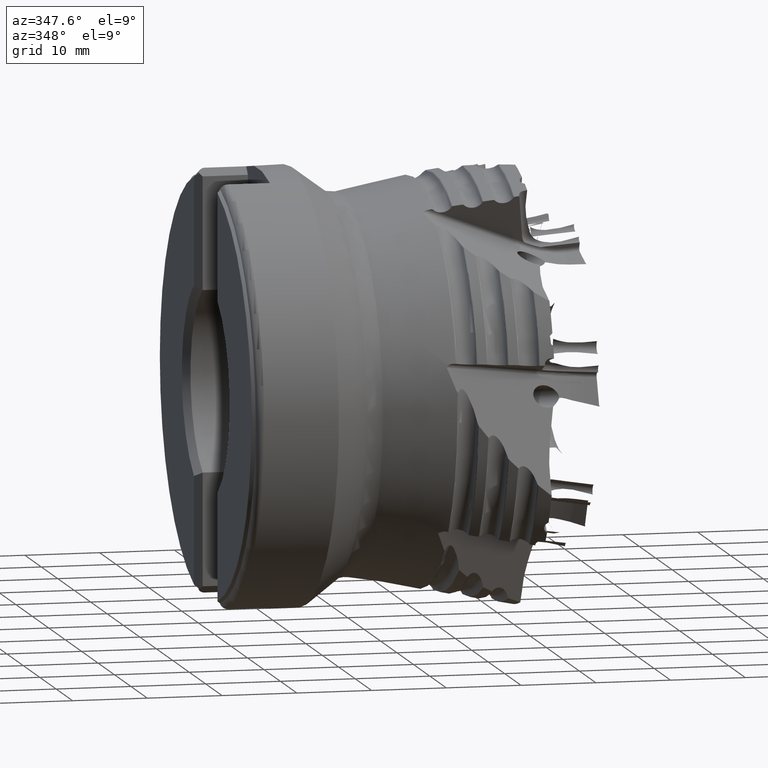
[diagram: clean part render]
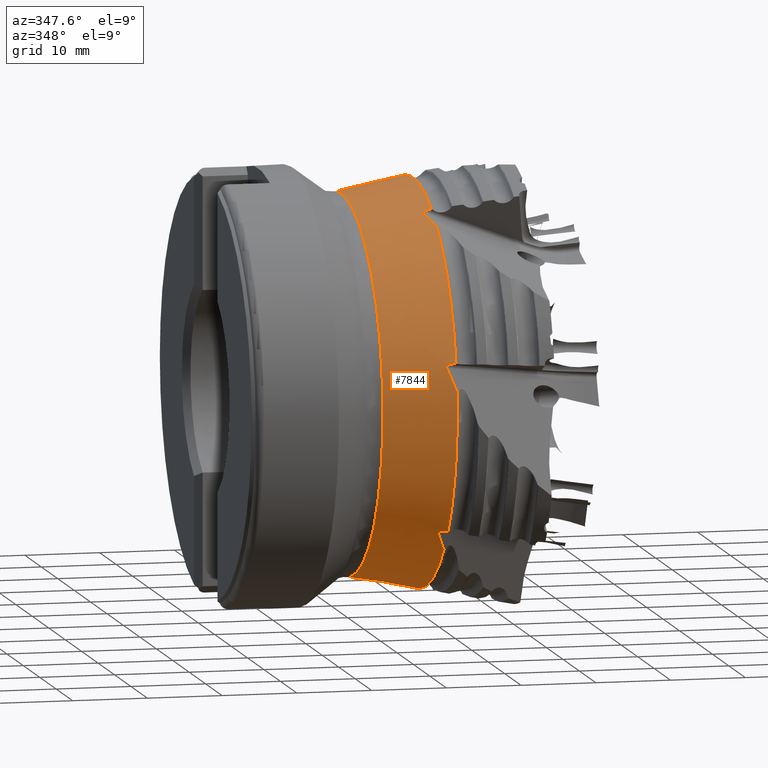
[diagram: same view with one face highlighted and labeled with its STEP entity id]
A machine part, auxiliary view. The second image highlights one B-rep face of the part: STEP entity #7844.
In plain terms, the highlighted conical surface has half-angle 10.839 deg.
Its self-contained STEP definition (entity closure, byte-faithful):
#25 = CARTESIAN_POINT ( 'NONE',  ( -21.29360231539660100, 12.12088007133810800, 24.20960675654019300 ) ) ;
#44 = CARTESIAN_POINT ( 'NONE',  ( -22.50028271122100800, -26.16677941317794200, 5.988833424580206200 ) ) ;
#74 = CARTESIAN_POINT ( 'NONE',  ( -22.50060545841283500, 0.03782372627721895100, -26.84328289638704800 ) ) ;
#102 = CARTESIAN_POINT ( 'NONE',  ( -22.05216509213893500, -26.16349653463762300, 6.375755505402028500 ) ) ;
#105 = VERTEX_POINT ( 'NONE', #1705 ) ;
#119 = CARTESIAN_POINT ( 'NONE',  ( -22.24207881119258400, -0.3227291792667023000, -26.89084651332126800 ) ) ;
#145 = EDGE_CURVE ( 'NONE', #6051, #12024, #3671, .T. ) ;
#200 = VERTEX_POINT ( 'NONE', #8090 ) ;
#269 = CARTESIAN_POINT ( 'NONE',  ( -21.29360231539660100, 20.90547181604998900, -17.20412860793644300 ) ) ;
#418 = AXIS2_PLACEMENT_3D ( 'NONE', #10304, #3954, #11376 ) ;
#437 = CARTESIAN_POINT ( 'NONE',  ( -22.48657542663973200, 26.15303881655725200, 6.059990592862874300 ) ) ;
#472 = CARTESIAN_POINT ( 'NONE',  ( -22.05216509213890300, 26.33883249156456000, 5.607558485113008500 ) ) ;
#526 = VERTEX_POINT ( 'NONE', #7633 ) ;
#565 = CARTESIAN_POINT ( 'NONE',  ( -21.54751282689976200, -11.33337416321396100, 24.53457545411862400 ) ) ;
#608 = CARTESIAN_POINT ( 'NONE',  ( -21.95167456189684400, 12.06565498227892300, 24.09635381027083800 ) ) ;
#623 = VERTEX_POINT ( 'NONE', #6756 ) ;
#802 = CARTESIAN_POINT ( 'NONE',  ( -21.29360231539660100, 0.0000000000000000000, 0.0000000000000000000 ) ) ;
#817 = B_SPLINE_CURVE_WITH_KNOTS ( 'NONE', 3,
 ( #7480, #74, #11755, #5432, #12813, #6484, #119, #7534, #1178, #8619, #2242, #9687 ),
 .UNSPECIFIED., .F., .F.,
 ( 4, 2, 2, 2, 2, 4 ),
 ( 5.678508878392829500E-018, 0.0001553431224996727400, 0.0003106862449993397900, 0.0006213724899986738200, 0.0009320587349980079200, 0.001242744979997342000 ),
 .UNSPECIFIED. ) ;
#887 = VERTEX_POINT ( 'NONE', #9997 ) ;
#967 = CARTESIAN_POINT ( 'NONE',  ( -22.50060545841283500, 21.01050636879316600, -16.70694135431847000 ) ) ;
#968 = CARTESIAN_POINT ( 'NONE',  ( -21.79621176707721000, -19.66494481627597300, -18.49928184980610600 ) ) ;
#1000 = CARTESIAN_POINT ( 'NONE',  ( -21.79621176707715300, 2.202428406164759900, -26.90878653342551600 ) ) ;
#1011 = CARTESIAN_POINT ( 'NONE',  ( -21.29360231539659800, -18.97964640580545000, -19.30786925894918600 ) ) ;
#1068 = VERTEX_POINT ( 'NONE', #7936 ) ;
#1071 = CIRCLE ( 'NONE', #13144, 27.07435674231389200 ) ;
#1086 = CARTESIAN_POINT ( 'NONE',  ( -21.29360231539660100, -26.92911602292759100, 2.800625507593435400 ) ) ;
#1157 = CARTESIAN_POINT ( 'NONE',  ( -21.75033332430290800, -26.20903793073052400, 6.432712216761702400 ) ) ;
#1178 = CARTESIAN_POINT ( 'NONE',  ( -21.95167456189706800, -0.4157634195852180100, -26.94515611162937700 ) ) ;
#1248 = CIRCLE ( 'NONE', #418, 27.07435674231389200 ) ;
#1262 = CARTESIAN_POINT ( 'NONE',  ( -22.47010761722986100, -21.06301945470250600, -16.65010160435356900 ) ) ;
#1294 = ORIENTED_EDGE ( 'NONE', *, *, #6687, .T. ) ;
#1400 = CARTESIAN_POINT ( 'NONE',  ( -21.79621176707720000, -13.65960434397734600, 23.28838106764271700 ) ) ;
#1406 = CARTESIAN_POINT ( 'NONE',  ( -21.29360231539660100, -0.4163808937612940000, -27.07115475855044600 ) ) ;
#1442 = CARTESIAN_POINT ( 'NONE',  ( -21.29360231539660100, 26.48507785446592400, 5.617957284721573100 ) ) ;
#1477 = CARTESIAN_POINT ( 'NONE',  ( -22.50060545841288800, 26.16184917938376800, 6.010067787048079400 ) ) ;
#1523 = CARTESIAN_POINT ( 'NONE',  ( -21.75033332430284400, 26.40457646253765100, 5.576001932581263500 ) ) ;
#1577 = CARTESIAN_POINT ( 'NONE',  ( -22.50060545841286000, -11.68094195311883800, 24.16855110215761100 ) ) ;
#1654 = CARTESIAN_POINT ( 'NONE',  ( -21.64915299067699900, 12.11356971009779200, 24.13712436030975500 ) ) ;
#1681 = DIRECTION ( 'NONE',  ( -1.000000000000000000, 0.0000000000000000000, 0.0000000000000000000 ) ) ;
#1705 = CARTESIAN_POINT ( 'NONE',  ( -21.29360231539660100, -26.29977092374335600, 6.429839995575416200 ) ) ;
#1717 = AXIS2_PLACEMENT_3D ( 'NONE', #13606, #12579, #12535 ) ;
#1753 = FACE_BOUND ( 'NONE', #11315, .T. ) ;
#1796 = VERTEX_POINT ( 'NONE', #10022 ) ;
#1807 = VERTEX_POINT ( 'NONE', #9099 ) ;
#1848 = DIRECTION ( 'NONE',  ( 0.0000000000000000000, 0.0000000000000000000, -1.000000000000000000 ) ) ;
#1858 = VERTEX_POINT ( 'NONE', #8168 ) ;
#1902 = CARTESIAN_POINT ( 'NONE',  ( -21.46287638082352300, -11.34577951166345700, 24.54669500464806800 ) ) ;
#1952 = ORIENTED_EDGE ( 'NONE', *, *, #13233, .F. ) ;
#1969 = CARTESIAN_POINT ( 'NONE',  ( -22.19403262101817700, -20.31657738762038400, -17.66539715760604800 ) ) ;
#1981 = CARTESIAN_POINT ( 'NONE',  ( -21.54751282689976900, 20.85617062504015700, -17.18752191261026100 ) ) ;
#2013 = CARTESIAN_POINT ( 'NONE',  ( -22.48657542663967500, 21.04404441869929700, -16.66892677498305300 ) ) ;
#2143 = DIRECTION ( 'NONE',  ( 1.000000000000000000, -0.0000000000000000000, -0.0000000000000000000 ) ) ;
#2217 = CARTESIAN_POINT ( 'NONE',  ( -21.54751282689952800, -26.24814671043051800, 6.436268865186077500 ) ) ;
#2242 = CARTESIAN_POINT ( 'NONE',  ( -21.64915299067730800, -0.4412434189673154500, -27.00267852920655500 ) ) ;
#2316 = CARTESIAN_POINT ( 'NONE',  ( -22.33475485665610400, -21.18116553998487500, -16.54177847504930900 ) ) ;
#2408 = VERTEX_POINT ( 'NONE', #5555 ) ;
#2419 = CARTESIAN_POINT ( 'NONE',  ( -21.54751282689976900, 20.85617062504015700, -17.18752191261026100 ) ) ;
#2444 = EDGE_CURVE ( 'NONE', #11026, #3869, #5100, .T. ) ;
#2498 = CARTESIAN_POINT ( 'NONE',  ( -21.79621176707710000, 22.41132811741158900, -15.05542611816287900 ) ) ;
#2556 = EDGE_CURVE ( 'NONE', #11026, #6961, #11451, .T. ) ;
#2574 = ORIENTED_EDGE ( 'NONE', *, *, #9406, .T. ) ;
#2602 = EDGE_CURVE ( 'NONE', #2408, #1858, #9013, .T. ) ;
#2607 = CARTESIAN_POINT ( 'NONE',  ( -21.54751282689947100, 26.44135542742609200, 5.589766166645394400 ) ) ;
#2643 = CARTESIAN_POINT ( 'NONE',  ( -22.50060545841285600, 11.61278595343084800, 24.20137330172680000 ) ) ;
#2650 = CARTESIAN_POINT ( 'NONE',  ( -22.50028271122100800, -11.63246159700984500, 24.19198850527531900 ) ) ;
#2702 = VERTEX_POINT ( 'NONE', #9648 ) ;
#2713 = CARTESIAN_POINT ( 'NONE',  ( -22.19403262101815200, 10.63987515683756200, 24.73100544114682700 ) ) ;
#2753 = CARTESIAN_POINT ( 'NONE',  ( -22.48657542663976000, -20.93374239731291900, -16.80724113496563300 ) ) ;
#2894 = EDGE_CURVE ( 'NONE', #1807, #887, #11886, .T. ) ;
#2916 = ORIENTED_EDGE ( 'NONE', *, *, #145, .T. ) ;
#2999 = CARTESIAN_POINT ( 'NONE',  ( -22.19403262101809600, 1.144184838262358300, -26.89833479119131700 ) ) ;
#3089 =( BOUNDED_CURVE ( )  B_SPLINE_CURVE ( 3, ( #4238, #6391, #7427, #1086 ),
 .UNSPECIFIED., .F., .F. ) 
 B_SPLINE_CURVE_WITH_KNOTS ( ( 4, 4 ),
 ( 3.238574205376581800, 3.308729897366854600 ),
 .UNSPECIFIED. ) 
 CURVE ( )  GEOMETRIC_REPRESENTATION_ITEM ( )  RATIONAL_B_SPLINE_CURVE ( ( 1.000000000000000000, 0.9995898902945052900, 0.9995898902945052900, 1.000000000000000000 ) ) 
 REPRESENTATION_ITEM ( '' )  );
#3110 = CARTESIAN_POINT ( 'NONE',  ( -22.47010761722988200, 20.91961155574791300, -16.82992942175014800 ) ) ;
#3171 = EDGE_CURVE ( 'NONE', #2702, #11297, #5957, .T. ) ;
#3199 = EDGE_CURVE ( 'NONE', #6693, #6538, #6881, .T. ) ;
#3239 = CARTESIAN_POINT ( 'NONE',  ( -21.37823954290406900, -26.28256483238455100, 6.431983431973455900 ) ) ;
#3246 = CARTESIAN_POINT ( 'NONE',  ( -21.46287638082326100, 12.11740112551470000, 24.17510162009405800 ) ) ;
#3283 = ORIENTED_EDGE ( 'NONE', *, *, #2556, .T. ) ;
#3292 = B_SPLINE_CURVE_WITH_KNOTS ( 'NONE', 3,
 ( #6306, #3239, #11712, #5382 ),
 .UNSPECIFIED., .F., .F.,
 ( 4, 4 ),
 ( 2.041537638926777800E-007, 0.0002593892849581981000 ),
 .UNSPECIFIED. ) ;
#3375 = CARTESIAN_POINT ( 'NONE',  ( -21.29360231539660100, 0.0000000000000000000, 0.0000000000000000000 ) ) ;
#3408 = CARTESIAN_POINT ( 'NONE',  ( -22.05216509213902800, -21.29743964895496300, -16.48022674546012600 ) ) ;
#3422 = CARTESIAN_POINT ( 'NONE',  ( -22.48657542663971800, -26.19240515221021300, 5.887515407063373700 ) ) ;
#3449 = CARTESIAN_POINT ( 'NONE',  ( -22.19403262101815200, -12.70162499363846800, 23.73811904941295100 ) ) ;
#3515 = ORIENTED_EDGE ( 'NONE', *, *, #3199, .T. ) ;
#3573 = DIRECTION ( 'NONE',  ( -1.000000000000000000, 0.0000000000000000000, 0.0000000000000000000 ) ) ;
#3575 = CARTESIAN_POINT ( 'NONE',  ( -21.29360231539660100, -21.42469029794774100, -16.55304922505524000 ) ) ;
#3579 = CARTESIAN_POINT ( 'NONE',  ( -21.54751282689947100, 26.44135542742609200, 5.589766166645394400 ) ) ;
#3605 = EDGE_CURVE ( 'NONE', #105, #3869, #1071, .T. ) ;
#3652 = ORIENTED_EDGE ( 'NONE', *, *, #6599, .F. ) ;
#3671 = CIRCLE ( 'NONE', #8965, 27.07435674231389200 ) ;
#3720 = CARTESIAN_POINT ( 'NONE',  ( -22.44128395744783000, -11.50774806850079000, 24.26404256436524100 ) ) ;
#3799 = CARTESIAN_POINT ( 'NONE',  ( -21.29360231539660100, 20.90547181604998900, -17.20412860793644300 ) ) ;
#3869 = VERTEX_POINT ( 'NONE', #5379 ) ;
#3901 = DIRECTION ( 'NONE',  ( -1.000000000000000000, 0.0000000000000000000, 0.0000000000000000000 ) ) ;
#3954 = DIRECTION ( 'NONE',  ( -1.000000000000000000, 0.0000000000000000000, 0.0000000000000000000 ) ) ;
#4015 = EDGE_CURVE ( 'NONE', #623, #1068, #10692, .T. ) ;
#4155 = CARTESIAN_POINT ( 'NONE',  ( -22.33475485665616500, 20.84029429069462600, -16.96921750190880800 ) ) ;
#4238 = CARTESIAN_POINT ( 'NONE',  ( -22.48657542663971800, -26.19240515221021300, 5.887515407063373700 ) ) ;
#4263 = CONICAL_SURFACE ( 'NONE', #1717, 29.60999999999999900, 0.1891723856149245300 ) ;
#4312 = EDGE_CURVE ( 'NONE', #4527, #1068, #7198, .T. ) ;
#4313 = CARTESIAN_POINT ( 'NONE',  ( -22.48657542663971800, -26.19240515221021300, 5.887515407063373700 ) ) ;
#4327 = ORIENTED_EDGE ( 'NONE', *, *, #3605, .T. ) ;
#4442 = DIRECTION ( 'NONE',  ( 0.0000000000000000000, -8.881784197001252300E-016, -1.000000000000000000 ) ) ;
#4470 = CARTESIAN_POINT ( 'NONE',  ( -21.75033332430304600, -21.37036479506014400, -16.48032051400090500 ) ) ;
#4477 = ORIENTED_EDGE ( 'NONE', *, *, #5499, .T. ) ;
#4505 = CARTESIAN_POINT ( 'NONE',  ( -22.19403262101808100, 21.74335254381649600, -15.87627770097361000 ) ) ;
#4527 = VERTEX_POINT ( 'NONE', #2753 ) ;
#4594 = FACE_OUTER_BOUND ( 'NONE', #5860, .T. ) ;
#4650 = CARTESIAN_POINT ( 'NONE',  ( -21.46287638082348800, -21.40658465844770200, -16.52347062935655200 ) ) ;
#4670 = ORIENTED_EDGE ( 'NONE', *, *, #2602, .F. ) ;
#4699 = CARTESIAN_POINT ( 'NONE',  ( -22.50028271122099700, 26.17391106375236400, 5.957587621853637200 ) ) ;
#4795 = CARTESIAN_POINT ( 'NONE',  ( -22.24207881119259500, -11.37673208995338200, 24.36784248306726000 ) ) ;
#4823 = CARTESIAN_POINT ( 'NONE',  ( -22.47010761722983600, 11.75291645192595300, 24.14012483104679100 ) ) ;
#4826 = DIRECTION ( 'NONE',  ( 0.0000000000000000000, 0.0000000000000000000, -1.000000000000000000 ) ) ;
#4831 = CARTESIAN_POINT ( 'NONE',  ( -22.19403262101814200, 25.96933230031506000, 7.100940315122816300 ) ) ;
#4850 = CARTESIAN_POINT ( 'NONE',  ( -21.79621176707720000, 9.690965488500419100, 25.19957681165376700 ) ) ;
#4949 =( BOUNDED_CURVE ( )  B_SPLINE_CURVE ( 3, ( #6308, #2999, #1000, #8437 ),
 .UNSPECIFIED., .F., .F. ) 
 B_SPLINE_CURVE_WITH_KNOTS ( ( 4, 4 ),
 ( 3.238574205376582200, 3.308729897366857700 ),
 .UNSPECIFIED. ) 
 CURVE ( )  GEOMETRIC_REPRESENTATION_ITEM ( )  RATIONAL_B_SPLINE_CURVE ( ( 1.000000000000000000, 0.9995898902945052900, 0.9995898902945052900, 1.000000000000000000 ) ) 
 REPRESENTATION_ITEM ( '' )  );
#5068 = CIRCLE ( 'NONE', #12220, 25.24679352548476200 ) ;
#5100 =( BOUNDED_CURVE ( )  B_SPLINE_CURVE ( 3, ( #12012, #3449, #1400, #13078 ),
 .UNSPECIFIED., .F., .T. ) 
 B_SPLINE_CURVE_WITH_KNOTS ( ( 4, 4 ),
 ( 3.238574205376581400, 3.308729897366854600 ),
 .UNSPECIFIED. ) 
 CURVE ( )  GEOMETRIC_REPRESENTATION_ITEM ( )  RATIONAL_B_SPLINE_CURVE ( ( 1.000000000000000000, 0.9995898902945052900, 0.9995898902945052900, 1.000000000000000000 ) ) 
 REPRESENTATION_ITEM ( '' )  );
#5156 = ORIENTED_EDGE ( 'NONE', *, *, #9567, .F. ) ;
#5183 = VERTEX_POINT ( 'NONE', #1011 ) ;
#5252 = CARTESIAN_POINT ( 'NONE',  ( -22.05216509213908400, 20.80615921479800400, -17.09627292456264800 ) ) ;
#5296 = DIRECTION ( 'NONE',  ( -1.000000000000000000, 0.0000000000000000000, 0.0000000000000000000 ) ) ;
#5305 = ORIENTED_EDGE ( 'NONE', *, *, #4015, .F. ) ;
#5354 = CIRCLE ( 'NONE', #12449, 27.07435674231389200 ) ;
#5379 = CARTESIAN_POINT ( 'NONE',  ( -21.29360231539660800, -14.60041202092637200, 22.80019214456902800 ) ) ;
#5382 = CARTESIAN_POINT ( 'NONE',  ( -21.54751282689952800, -26.24814671043051800, 6.436268865186077500 ) ) ;
#5406 = CARTESIAN_POINT ( 'NONE',  ( -22.44128395744780800, -26.14535593183483900, 6.131263358483369800 ) ) ;
#5432 = CARTESIAN_POINT ( 'NONE',  ( -22.47010761722987800, -0.1150042057843512200, -26.84890027574919100 ) ) ;
#5499 = EDGE_CURVE ( 'NONE', #2408, #200, #8700, .T. ) ;
#5508 = CARTESIAN_POINT ( 'NONE',  ( -22.50060545841288500, -20.96334095358867000, -16.76608491429434300 ) ) ;
#5555 = CARTESIAN_POINT ( 'NONE',  ( -22.48657542663973200, 26.15303881655725200, 6.059990592862874300 ) ) ;
#5557 = CARTESIAN_POINT ( 'NONE',  ( -21.54751282689970900, -21.39752942007648400, -16.50867945518985600 ) ) ;
#5604 = CARTESIAN_POINT ( 'NONE',  ( -21.37823954290415100, 20.88903966119846700, -17.19859433414704200 ) ) ;
#5630 = CARTESIAN_POINT ( 'NONE',  ( -21.29360231539660100, -26.92911602292759100, 2.800625507593435400 ) ) ;
#5781 = CARTESIAN_POINT ( 'NONE',  ( -22.44128395744779800, 26.21640720630432100, 5.819967385359423600 ) ) ;
#5808 = EDGE_CURVE ( 'NONE', #9244, #10175, #6648, .T. ) ;
#5842 = CARTESIAN_POINT ( 'NONE',  ( -21.54751282689969100, -0.4341360463496482500, -27.02225543011734700 ) ) ;
#5860 = EDGE_LOOP ( 'NONE', ( #1952, #6727, #5305, #8174, #5156, #10615, #11700, #4327, #12900, #3283, #7007, #11493, #8366, #1294, #6079, #7429, #4670, #4477, #9959, #2916, #3652, #10521, #7920, #3515, #8549, #7685, #10196, #2574 ) ) ;
#5872 = CARTESIAN_POINT ( 'NONE',  ( -21.95167456189710700, -11.31647518736134300, 24.45713978442651300 ) ) ;
#5910 = B_SPLINE_CURVE_WITH_KNOTS ( 'NONE', 3,
 ( #1406, #13001, #11980, #5842 ),
 .UNSPECIFIED., .F., .F.,
 ( 4, 4 ),
 ( 2.041537638924001700E-007, 0.0002593892849583645800 ),
 .UNSPECIFIED. ) ;
#5916 = CARTESIAN_POINT ( 'NONE',  ( -22.33475485665603300, 11.90636204100538500, 24.09379072911430700 ) ) ;
#5920 = CARTESIAN_POINT ( 'NONE',  ( -21.79621176707721700, 25.74404064846720900, 8.134977238801163000 ) ) ;
#5957 = B_SPLINE_CURVE_WITH_KNOTS ( 'NONE', 3,
 ( #25, #7446, #3246, #10653 ),
 .UNSPECIFIED., .F., .F.,
 ( 4, 4 ),
 ( 2.041537638921429100E-007, 0.0002593892849580310300 ),
 .UNSPECIFIED. ) ;
#5964 = CARTESIAN_POINT ( 'NONE',  ( -21.29360231539660100, 0.0000000000000000000, 0.0000000000000000000 ) ) ;
#6051 = VERTEX_POINT ( 'NONE', #7044 ) ;
#6079 = ORIENTED_EDGE ( 'NONE', *, *, #3171, .F. ) ;
#6133 = EDGE_CURVE ( 'NONE', #13218, #12608, #8723, .T. ) ;
#6138 = EDGE_CURVE ( 'NONE', #2702, #1858, #5354, .T. ) ;
#6180 = B_SPLINE_CURVE_WITH_KNOTS ( 'NONE', 3,
 ( #8243, #13559, #1902, #9349 ),
 .UNSPECIFIED., .F., .F.,
 ( 4, 4 ),
 ( 2.041537638924959100E-007, 0.0002593892849584352200 ),
 .UNSPECIFIED. ) ;
#6306 = CARTESIAN_POINT ( 'NONE',  ( -21.29360231539660100, -26.29977092374335600, 6.429839995575416200 ) ) ;
#6308 = CARTESIAN_POINT ( 'NONE',  ( -22.48657542663968900, 0.08845535328513928800, -26.84580229712665700 ) ) ;
#6313 = CARTESIAN_POINT ( 'NONE',  ( -21.75033332430310700, 20.82247800398591400, -17.16734881953724900 ) ) ;
#6367 = CARTESIAN_POINT ( 'NONE',  ( -30.83892000808290100, 0.0000000000000000000, -25.24679352548476200 ) ) ;
#6391 = CARTESIAN_POINT ( 'NONE',  ( -22.19403262101813800, -26.47854245797270400, 4.869944844088099200 ) ) ;
#6464 = CARTESIAN_POINT ( 'NONE',  ( -22.24207881119251700, -26.14482284964885400, 6.298413965962570400 ) ) ;
#6484 = CARTESIAN_POINT ( 'NONE',  ( -22.33475485665613600, -0.2733575178569738200, -26.87373223832667400 ) ) ;
#6538 = VERTEX_POINT ( 'NONE', #8697 ) ;
#6599 = EDGE_CURVE ( 'NONE', #13218, #12024, #8114, .T. ) ;
#6648 = B_SPLINE_CURVE_WITH_KNOTS ( 'NONE', 3,
 ( #4313, #10665, #44, #11733, #5406, #12787, #6464, #102, #7507, #1157, #8598, #2217 ),
 .UNSPECIFIED., .F., .F.,
 ( 4, 2, 2, 2, 2, 4 ),
 ( 7.757919228897728500E-018, 0.0001553431224997025000, 0.0003106862449993972500, 0.0006213724899987849500, 0.0009320587349981726100, 0.001242744979997560400 ),
 .UNSPECIFIED. ) ;
#6687 = EDGE_CURVE ( 'NONE', #1807, #11297, #12004, .T. ) ;
#6693 = VERTEX_POINT ( 'NONE', #3799 ) ;
#6727 = ORIENTED_EDGE ( 'NONE', *, *, #4312, .T. ) ;
#6756 = CARTESIAN_POINT ( 'NONE',  ( -21.29360231539660100, -21.42469029794774100, -16.55304922505524000 ) ) ;
#6771 = ORIENTED_EDGE ( 'NONE', *, *, #10100, .T. ) ;
#6824 = CARTESIAN_POINT ( 'NONE',  ( -22.24207881119248500, 26.28845084641956500, 5.669138596077571500 ) ) ;
#6881 = CIRCLE ( 'NONE', #7009, 27.07435674231389200 ) ;
#6918 = CARTESIAN_POINT ( 'NONE',  ( -21.64915299067736900, -11.31847654278535700, 24.52002104927464300 ) ) ;
#6956 = CARTESIAN_POINT ( 'NONE',  ( -22.05216509213884300, 12.03782768791384500, 24.08878398215143000 ) ) ;
#6961 = VERTEX_POINT ( 'NONE', #9653 ) ;
#7007 = ORIENTED_EDGE ( 'NONE', *, *, #12318, .F. ) ;
#7009 = AXIS2_PLACEMENT_3D ( 'NONE', #3375, #10780, #4442 ) ;
#7016 =( BOUNDED_CURVE ( )  B_SPLINE_CURVE ( 3, ( #9428, #1969, #968, #8402 ),
 .UNSPECIFIED., .F., .F. ) 
 B_SPLINE_CURVE_WITH_KNOTS ( ( 4, 4 ),
 ( 3.238574205376580500, 3.308729897366855100 ),
 .UNSPECIFIED. ) 
 CURVE ( )  GEOMETRIC_REPRESENTATION_ITEM ( )  RATIONAL_B_SPLINE_CURVE ( ( 1.000000000000000000, 0.9995898902945052900, 0.9995898902945052900, 1.000000000000000000 ) ) 
 REPRESENTATION_ITEM ( '' )  );
#7044 = CARTESIAN_POINT ( 'NONE',  ( -21.29360231539660100, 26.48507785446592400, 5.617957284721573100 ) ) ;
#7198 = B_SPLINE_CURVE_WITH_KNOTS ( 'NONE', 3,
 ( #9730, #5508, #7613, #1262, #8709, #2316, #9770, #3408, #10813, #4470, #11889, #5557 ),
 .UNSPECIFIED., .F., .F.,
 ( 4, 2, 2, 2, 2, 4 ),
 ( 3.486751034121080700E-017, 0.0001553431224997090300, 0.0003106862449993832100, 0.0006213724899987252200, 0.0009320587349980671100, 0.001242744979997409200 ),
 .UNSPECIFIED. ) ;
#7309 = CARTESIAN_POINT ( 'NONE',  ( -22.50028271122101800, 20.97699618533408000, -16.74909256305431900 ) ) ;
#7361 = CARTESIAN_POINT ( 'NONE',  ( -21.54751282689976900, 20.85617062504015700, -17.18752191261026100 ) ) ;
#7427 = CARTESIAN_POINT ( 'NONE',  ( -21.79621176707721000, -26.72421350029065200, 3.840559383296630700 ) ) ;
#7429 = ORIENTED_EDGE ( 'NONE', *, *, #6138, .T. ) ;
#7446 = CARTESIAN_POINT ( 'NONE',  ( -21.37823954290401200, 12.11914105179164200, 24.19235509834578600 ) ) ;
#7480 = CARTESIAN_POINT ( 'NONE',  ( -22.48657542663968900, 0.08845535328513928800, -26.84580229712665700 ) ) ;
#7507 = CARTESIAN_POINT ( 'NONE',  ( -21.95167456189696200, -26.17706872689324300, 6.401200666176026600 ) ) ;
#7518 = EDGE_CURVE ( 'NONE', #6693, #12608, #10808, .T. ) ;
#7534 = CARTESIAN_POINT ( 'NONE',  ( -22.05216509213903100, -0.3939763190132417600, -26.92626212162979400 ) ) ;
#7570 = EDGE_CURVE ( 'NONE', #12561, #1796, #5910, .T. ) ;
#7613 = CARTESIAN_POINT ( 'NONE',  ( -22.50028271122101100, -20.99697862619709800, -16.72403537476241600 ) ) ;
#7633 = CARTESIAN_POINT ( 'NONE',  ( -22.48657542663968900, 0.08845535328513928800, -26.84580229712665700 ) ) ;
#7684 = VERTEX_POINT ( 'NONE', #6367 ) ;
#7685 = ORIENTED_EDGE ( 'NONE', *, *, #11930, .T. ) ;
#7786 = CARTESIAN_POINT ( 'NONE',  ( -22.48657542663967500, 21.04404441869929700, -16.66892677498305300 ) ) ;
#7797 = CARTESIAN_POINT ( 'NONE',  ( -21.37823954290404800, 26.47050570401230400, 5.608560672002257200 ) ) ;
#7844 = ADVANCED_FACE ( 'NONE', ( #4594, #1753 ), #4263, .T. ) ;
#7897 = CARTESIAN_POINT ( 'NONE',  ( -21.95167456189690500, 26.36210085575512700, 5.590521940940754500 ) ) ;
#7920 = ORIENTED_EDGE ( 'NONE', *, *, #7518, .F. ) ;
#7936 = CARTESIAN_POINT ( 'NONE',  ( -21.54751282689970900, -21.39752942007648400, -16.50867945518985600 ) ) ;
#8029 = CARTESIAN_POINT ( 'NONE',  ( -21.75033332430275500, 12.10349028959672400, 24.12050949975529000 ) ) ;
#8053 = EDGE_CURVE ( 'NONE', #8852, #887, #12381, .T. ) ;
#8069 = CARTESIAN_POINT ( 'NONE',  ( -21.29360231539660100, 0.0000000000000000000, 0.0000000000000000000 ) ) ;
#8090 = CARTESIAN_POINT ( 'NONE',  ( -21.54751282689947100, 26.44135542742609200, 5.589766166645394400 ) ) ;
#8114 =( BOUNDED_CURVE ( )  B_SPLINE_CURVE ( 3, ( #7786, #4505, #2498, #9938 ),
 .UNSPECIFIED., .F., .T. ) 
 B_SPLINE_CURVE_WITH_KNOTS ( ( 4, 4 ),
 ( 3.238574205376581800, 3.308729897366858600 ),
 .UNSPECIFIED. ) 
 CURVE ( )  GEOMETRIC_REPRESENTATION_ITEM ( )  RATIONAL_B_SPLINE_CURVE ( ( 1.000000000000000000, 0.9995898902945052900, 0.9995898902945052900, 1.000000000000000000 ) ) 
 REPRESENTATION_ITEM ( '' )  );
#8168 = CARTESIAN_POINT ( 'NONE',  ( -21.29360231539659800, 25.47744104389264000, 9.160829158163206600 ) ) ;
#8174 = ORIENTED_EDGE ( 'NONE', *, *, #8240, .T. ) ;
#8238 = DIRECTION ( 'NONE',  ( -1.000000000000000000, 0.0000000000000000000, 0.0000000000000000000 ) ) ;
#8240 = EDGE_CURVE ( 'NONE', #623, #10852, #13216, .T. ) ;
#8243 = CARTESIAN_POINT ( 'NONE',  ( -21.29360231539660100, -11.37058762640182500, 24.57092855470455100 ) ) ;
#8366 = ORIENTED_EDGE ( 'NONE', *, *, #2894, .F. ) ;
#8402 = CARTESIAN_POINT ( 'NONE',  ( -21.29360231539659800, -18.97964640580545000, -19.30786925894918600 ) ) ;
#8437 = CARTESIAN_POINT ( 'NONE',  ( -21.29360231539661500, 3.261884069118409400, -26.87714466474649900 ) ) ;
#8529 = CARTESIAN_POINT ( 'NONE',  ( -30.83892000808290100, 0.0000000000000000000, 0.0000000000000000000 ) ) ;
#8549 = ORIENTED_EDGE ( 'NONE', *, *, #10045, .F. ) ;
#8598 = CARTESIAN_POINT ( 'NONE',  ( -21.64915299067715900, -26.22747910410571100, 6.438841770858688000 ) ) ;
#8619 = CARTESIAN_POINT ( 'NONE',  ( -21.75033332430303900, -0.4393710927116268900, -26.98333576044731400 ) ) ;
#8697 = CARTESIAN_POINT ( 'NONE',  ( -21.29360231539661500, 3.261884069118409400, -26.87714466474649900 ) ) ;
#8700 = B_SPLINE_CURVE_WITH_KNOTS ( 'NONE', 3,
 ( #437, #1477, #4699, #12096, #5781, #13177, #6824, #472, #7897, #1523, #8976, #2607 ),
 .UNSPECIFIED., .F., .F.,
 ( 4, 2, 2, 2, 2, 4 ),
 ( 6.071532165918825600E-018, 0.0001553431224997156500, 0.0003106862449994252200, 0.0006213724899988362400, 0.0009320587349982472000, 0.001242744979997658200 ),
 .UNSPECIFIED. ) ;
#8709 = CARTESIAN_POINT ( 'NONE',  ( -22.44128395744781600, -21.09497751043067700, -16.61848221131629100 ) ) ;
#8723 = B_SPLINE_CURVE_WITH_KNOTS ( 'NONE', 3,
 ( #2013, #967, #7309, #3110, #10516, #4155, #11576, #5252, #12635, #6313, #13717, #7361 ),
 .UNSPECIFIED., .F., .F.,
 ( 4, 2, 2, 2, 2, 4 ),
 ( 4.906538933386797400E-018, 0.0001553431224996603200, 0.0003106862449993157700, 0.0006213724899986265500, 0.0009320587349979373400, 0.001242744979997248300 ),
 .UNSPECIFIED. ) ;
#8762 = CARTESIAN_POINT ( 'NONE',  ( -21.29360231539651900, 23.04714930968728500, -14.20738194415351300 ) ) ;
#8801 = CARTESIAN_POINT ( 'NONE',  ( -21.46287638082353100, 20.87260593368877100, -17.19305877135994000 ) ) ;
#8852 = VERTEX_POINT ( 'NONE', #12264 ) ;
#8965 = AXIS2_PLACEMENT_3D ( 'NONE', #5964, #3901, #4826 ) ;
#8976 = CARTESIAN_POINT ( 'NONE',  ( -21.64915299067709900, 26.42385089948701100, 5.578480720423503000 ) ) ;
#9013 =( BOUNDED_CURVE ( )  B_SPLINE_CURVE ( 3, ( #9076, #4831, #5920, #13320 ),
 .UNSPECIFIED., .F., .T. ) 
 B_SPLINE_CURVE_WITH_KNOTS ( ( 4, 4 ),
 ( 3.238574205376581800, 3.308729897366856400 ),
 .UNSPECIFIED. ) 
 CURVE ( )  GEOMETRIC_REPRESENTATION_ITEM ( )  RATIONAL_B_SPLINE_CURVE ( ( 1.000000000000000000, 0.9995898902945052900, 0.9995898902945052900, 1.000000000000000000 ) ) 
 REPRESENTATION_ITEM ( '' )  );
#9069 = CARTESIAN_POINT ( 'NONE',  ( -22.48657542663970300, 11.56826156077869800, 24.22561144300275900 ) ) ;
#9076 = CARTESIAN_POINT ( 'NONE',  ( -22.48657542663973200, 26.15303881655725200, 6.059990592862874300 ) ) ;
#9099 = CARTESIAN_POINT ( 'NONE',  ( -22.48657542663970300, 11.56826156077869800, 24.22561144300275900 ) ) ;
#9107 = CARTESIAN_POINT ( 'NONE',  ( -21.54751282689936800, 12.11566028760418800, 24.15784631196706300 ) ) ;
#9134 = DIRECTION ( 'NONE',  ( 0.0000000000000000000, 0.0000000000000000000, -1.000000000000000000 ) ) ;
#9244 = VERTEX_POINT ( 'NONE', #3422 ) ;
#9304 = AXIS2_PLACEMENT_3D ( 'NONE', #802, #8238, #1848 ) ;
#9349 = CARTESIAN_POINT ( 'NONE',  ( -21.54751282689976200, -11.33337416321396100, 24.53457545411862400 ) ) ;
#9406 = EDGE_CURVE ( 'NONE', #12561, #5183, #1248, .T. ) ;
#9428 = CARTESIAN_POINT ( 'NONE',  ( -22.48657542663976000, -20.93374239731291900, -16.80724113496563300 ) ) ;
#9567 = EDGE_CURVE ( 'NONE', #9244, #10852, #3089, .T. ) ;
#9599 = DIRECTION ( 'NONE',  ( 0.0000000000000000000, 0.0000000000000000000, -1.000000000000000000 ) ) ;
#9616 = CARTESIAN_POINT ( 'NONE',  ( -21.54751282689936800, 12.11566028760418800, 24.15784631196706300 ) ) ;
#9648 = CARTESIAN_POINT ( 'NONE',  ( -21.29360231539660100, 12.12088007133810800, 24.20960675654019300 ) ) ;
#9653 = CARTESIAN_POINT ( 'NONE',  ( -21.54751282689976200, -11.33337416321396100, 24.53457545411862400 ) ) ;
#9687 = CARTESIAN_POINT ( 'NONE',  ( -21.54751282689969100, -0.4341360463496482500, -27.02225543011734700 ) ) ;
#9730 = CARTESIAN_POINT ( 'NONE',  ( -22.48657542663976000, -20.93374239731291900, -16.80724113496563300 ) ) ;
#9770 = CARTESIAN_POINT ( 'NONE',  ( -22.24207881119256300, -21.22532874636504700, -16.51384873174277200 ) ) ;
#9938 = CARTESIAN_POINT ( 'NONE',  ( -21.29360231539651900, 23.04714930968728500, -14.20738194415351300 ) ) ;
#9945 = CARTESIAN_POINT ( 'NONE',  ( -21.29360231539660100, 0.0000000000000000000, 0.0000000000000000000 ) ) ;
#9951 = CARTESIAN_POINT ( 'NONE',  ( -21.46287638082333200, 26.45593156524336100, 5.599163633406197600 ) ) ;
#9959 = ORIENTED_EDGE ( 'NONE', *, *, #10260, .F. ) ;
#9997 = CARTESIAN_POINT ( 'NONE',  ( -21.29360231539660800, 8.722700026961106800, 25.63074905752329300 ) ) ;
#10022 = CARTESIAN_POINT ( 'NONE',  ( -21.54751282689969100, -0.4341360463496482500, -27.02225543011734700 ) ) ;
#10045 = EDGE_CURVE ( 'NONE', #526, #6538, #4949, .T. ) ;
#10081 = CARTESIAN_POINT ( 'NONE',  ( -22.47010761722986800, -11.54568603374714000, 24.23992174068656900 ) ) ;
#10100 = EDGE_CURVE ( 'NONE', #7684, #7684, #5068, .T. ) ;
#10132 = CARTESIAN_POINT ( 'NONE',  ( -22.48657542663970300, 11.56826156077869800, 24.22561144300275900 ) ) ;
#10175 = VERTEX_POINT ( 'NONE', #11845 ) ;
#10196 = ORIENTED_EDGE ( 'NONE', *, *, #7570, .F. ) ;
#10260 = EDGE_CURVE ( 'NONE', #6051, #200, #10292, .T. ) ;
#10292 = B_SPLINE_CURVE_WITH_KNOTS ( 'NONE', 3,
 ( #1442, #7797, #9951, #3579 ),
 .UNSPECIFIED., .F., .F.,
 ( 4, 4 ),
 ( 2.041537638922539800E-007, 0.0002593892849581376600 ),
 .UNSPECIFIED. ) ;
#10304 = CARTESIAN_POINT ( 'NONE',  ( -21.29360231539660100, 0.0000000000000000000, 0.0000000000000000000 ) ) ;
#10396 = CARTESIAN_POINT ( 'NONE',  ( -21.29360231539660100, -0.4163808937612940000, -27.07115475855044600 ) ) ;
#10516 = CARTESIAN_POINT ( 'NONE',  ( -22.44128395744785100, 20.89589626331768500, -16.86812219916839700 ) ) ;
#10521 = ORIENTED_EDGE ( 'NONE', *, *, #6133, .T. ) ;
#10615 = ORIENTED_EDGE ( 'NONE', *, *, #5808, .T. ) ;
#10653 = CARTESIAN_POINT ( 'NONE',  ( -21.54751282689936800, 12.11566028760418800, 24.15784631196706300 ) ) ;
#10665 = CARTESIAN_POINT ( 'NONE',  ( -22.50060545841287400, -26.17868232117766800, 5.936316974066985000 ) ) ;
#10692 = B_SPLINE_CURVE_WITH_KNOTS ( 'NONE', 3,
 ( #3575, #11001, #4650, #12061 ),
 .UNSPECIFIED., .F., .F.,
 ( 4, 4 ),
 ( 2.041537638920849100E-007, 0.0002593892849583787300 ),
 .UNSPECIFIED. ) ;
#10780 = DIRECTION ( 'NONE',  ( -1.000000000000000000, 0.0000000000000000000, 0.0000000000000000000 ) ) ;
#10808 = B_SPLINE_CURVE_WITH_KNOTS ( 'NONE', 3,
 ( #269, #5604, #8801, #2419 ),
 .UNSPECIFIED., .F., .F.,
 ( 4, 4 ),
 ( 2.041537638925504100E-007, 0.0002593892849584386300 ),
 .UNSPECIFIED. ) ;
#10813 = CARTESIAN_POINT ( 'NONE',  ( -21.95167456189705700, -21.32579560018477600, -16.47497311440242000 ) ) ;
#10852 = VERTEX_POINT ( 'NONE', #5630 ) ;
#11000 = DIRECTION ( 'NONE',  ( 0.0000000000000000000, 1.776356839400250500E-015, -1.000000000000000000 ) ) ;
#11001 = CARTESIAN_POINT ( 'NONE',  ( -21.37823954290412900, -21.41563828151232600, -16.53826055040558200 ) ) ;
#11026 = VERTEX_POINT ( 'NONE', #11359 ) ;
#11098 = CARTESIAN_POINT ( 'NONE',  ( -22.48657542663970300, -11.72765259979744300, 24.14885276414597800 ) ) ;
#11140 = CARTESIAN_POINT ( 'NONE',  ( -22.33475485665614000, -11.41378881421322500, 24.33100149304151200 ) ) ;
#11181 = CARTESIAN_POINT ( 'NONE',  ( -22.50028271122100800, 11.66133706068001700, 24.17808281486546600 ) ) ;
#11297 = VERTEX_POINT ( 'NONE', #9616 ) ;
#11315 = EDGE_LOOP ( 'NONE', ( #6771 ) ) ;
#11359 = CARTESIAN_POINT ( 'NONE',  ( -22.48657542663970300, -11.72765259979744300, 24.14885276414597800 ) ) ;
#11376 = DIRECTION ( 'NONE',  ( 0.0000000000000000000, 0.0000000000000000000, -1.000000000000000000 ) ) ;
#11451 = B_SPLINE_CURVE_WITH_KNOTS ( 'NONE', 3,
 ( #11098, #1577, #2650, #10081, #3720, #11140, #4795, #12197, #5872, #13271, #6918, #565 ),
 .UNSPECIFIED., .F., .F.,
 ( 4, 2, 2, 2, 2, 4 ),
 ( 1.551583845779545700E-017, 0.0001553431224996747200, 0.0003106862449993339300, 0.0006213724899986607100, 0.0009320587349979874300, 0.001242744979997314300 ),
 .UNSPECIFIED. ) ;
#11482 = CARTESIAN_POINT ( 'NONE',  ( -22.48657542663967500, 21.04404441869929700, -16.66892677498305300 ) ) ;
#11493 = ORIENTED_EDGE ( 'NONE', *, *, #8053, .T. ) ;
#11576 = CARTESIAN_POINT ( 'NONE',  ( -22.24207881119261600, 20.82289204229523000, -17.01848839706601500 ) ) ;
#11623 = CARTESIAN_POINT ( 'NONE',  ( -21.29360231539660100, 0.0000000000000000000, 0.0000000000000000000 ) ) ;
#11700 = ORIENTED_EDGE ( 'NONE', *, *, #11873, .F. ) ;
#11712 = CARTESIAN_POINT ( 'NONE',  ( -21.46287638082337100, -26.26535676483455000, 6.434126389375496300 ) ) ;
#11733 = CARTESIAN_POINT ( 'NONE',  ( -22.47010761722985700, -26.15015144693416700, 6.086563175296904900 ) ) ;
#11755 = CARTESIAN_POINT ( 'NONE',  ( -22.50028271122101800, -0.01602467338171760500, -26.84336442875827800 ) ) ;
#11845 = CARTESIAN_POINT ( 'NONE',  ( -21.54751282689952800, -26.24814671043051800, 6.436268865186077500 ) ) ;
#11873 = EDGE_CURVE ( 'NONE', #105, #10175, #3292, .T. ) ;
#11886 =( BOUNDED_CURVE ( )  B_SPLINE_CURVE ( 3, ( #10132, #2713, #4850, #12254 ),
 .UNSPECIFIED., .F., .T. ) 
 B_SPLINE_CURVE_WITH_KNOTS ( ( 4, 4 ),
 ( 3.238574205376581400, 3.308729897366854600 ),
 .UNSPECIFIED. ) 
 CURVE ( )  GEOMETRIC_REPRESENTATION_ITEM ( )  RATIONAL_B_SPLINE_CURVE ( ( 1.000000000000000000, 0.9995898902945052900, 0.9995898902945052900, 1.000000000000000000 ) ) 
 REPRESENTATION_ITEM ( '' )  );
#11889 = CARTESIAN_POINT ( 'NONE',  ( -21.64915299067731500, -21.38665495696040300, -16.49091668944986100 ) ) ;
#11930 = EDGE_CURVE ( 'NONE', #526, #1796, #817, .T. ) ;
#11980 = CARTESIAN_POINT ( 'NONE',  ( -21.46287638082348100, -0.4282176895013110100, -27.03855724680766700 ) ) ;
#12004 = B_SPLINE_CURVE_WITH_KNOTS ( 'NONE', 3,
 ( #9069, #2643, #11181, #4823, #12233, #5916, #13312, #6956, #608, #8029, #1654, #9107 ),
 .UNSPECIFIED., .F., .F.,
 ( 4, 2, 2, 2, 2, 4 ),
 ( 1.097135458930219100E-017, 0.0001553431224997257800, 0.0003106862449994405600, 0.0006213724899988610700, 0.0009320587349982814600, 0.001242744979997702200 ),
 .UNSPECIFIED. ) ;
#12012 = CARTESIAN_POINT ( 'NONE',  ( -22.48657542663970300, -11.72765259979744300, 24.14885276414597800 ) ) ;
#12024 = VERTEX_POINT ( 'NONE', #8762 ) ;
#12061 = CARTESIAN_POINT ( 'NONE',  ( -21.54751282689970900, -21.39752942007648400, -16.50867945518985600 ) ) ;
#12096 = CARTESIAN_POINT ( 'NONE',  ( -22.47010761722983900, 26.20133313349417400, 5.862321554822251800 ) ) ;
#12197 = CARTESIAN_POINT ( 'NONE',  ( -22.05216509213906700, -11.32790689167067900, 24.43066381898571700 ) ) ;
#12220 = AXIS2_PLACEMENT_3D ( 'NONE', #8529, #2143, #9599 ) ;
#12233 = CARTESIAN_POINT ( 'NONE',  ( -22.44128395744778700, 11.79542880569537500, 24.12550282301250000 ) ) ;
#12254 = CARTESIAN_POINT ( 'NONE',  ( -21.29360231539660800, 8.722700026961106800, 25.63074905752329300 ) ) ;
#12264 = CARTESIAN_POINT ( 'NONE',  ( -21.29360231539660100, -11.37058762640182500, 24.57092855470455100 ) ) ;
#12318 = EDGE_CURVE ( 'NONE', #8852, #6961, #6180, .T. ) ;
#12381 = CIRCLE ( 'NONE', #13093, 27.07435674231389200 ) ;
#12449 = AXIS2_PLACEMENT_3D ( 'NONE', #11623, #5296, #12691 ) ;
#12535 = DIRECTION ( 'NONE',  ( 0.0000000000000000000, 0.0000000000000000000, -1.000000000000000000 ) ) ;
#12561 = VERTEX_POINT ( 'NONE', #10396 ) ;
#12579 = DIRECTION ( 'NONE',  ( 1.000000000000000000, -0.0000000000000000000, -0.0000000000000000000 ) ) ;
#12608 = VERTEX_POINT ( 'NONE', #1981 ) ;
#12635 = CARTESIAN_POINT ( 'NONE',  ( -21.95167456189712500, 20.80734709599042300, -17.12508697578268300 ) ) ;
#12691 = DIRECTION ( 'NONE',  ( 0.0000000000000000000, 8.881784197001252300E-016, -1.000000000000000000 ) ) ;
#12787 = CARTESIAN_POINT ( 'NONE',  ( -22.33475485665608000, -26.13912389346774700, 6.246471870727661200 ) ) ;
#12813 = CARTESIAN_POINT ( 'NONE',  ( -22.44128395744783300, -0.1596507645511773000, -26.85417172073623600 ) ) ;
#12900 = ORIENTED_EDGE ( 'NONE', *, *, #2444, .F. ) ;
#13001 = CARTESIAN_POINT ( 'NONE',  ( -21.37823954290412200, -0.4222993052526317600, -27.05485701929434900 ) ) ;
#13078 = CARTESIAN_POINT ( 'NONE',  ( -21.29360231539660800, -14.60041202092637200, 22.80019214456902800 ) ) ;
#13093 = AXIS2_PLACEMENT_3D ( 'NONE', #9945, #3573, #11000 ) ;
#13144 = AXIS2_PLACEMENT_3D ( 'NONE', #8069, #1681, #9134 ) ;
#13177 = CARTESIAN_POINT ( 'NONE',  ( -22.33475485665606500, 26.26077943382271200, 5.713464122400920600 ) ) ;
#13216 = CIRCLE ( 'NONE', #9304, 27.07435674231389200 ) ;
#13218 = VERTEX_POINT ( 'NONE', #11482 ) ;
#13233 = EDGE_CURVE ( 'NONE', #4527, #5183, #7016, .T. ) ;
#13271 = CARTESIAN_POINT ( 'NONE',  ( -21.75033332430309900, -11.31177093761814200, 24.50178144488685900 ) ) ;
#13312 = CARTESIAN_POINT ( 'NONE',  ( -22.24207881119244600, 11.95826997651910000, 24.08778859702226100 ) ) ;
#13320 = CARTESIAN_POINT ( 'NONE',  ( -21.29360231539659800, 25.47744104389264000, 9.160829158163206600 ) ) ;
#13559 = CARTESIAN_POINT ( 'NONE',  ( -21.37823954290414700, -11.35818399785309100, 24.55881270152511300 ) ) ;
#13606 = CARTESIAN_POINT ( 'NONE',  ( -8.050000000000000700, 0.0000000000000000000, 0.0000000000000000000 ) ) ;
#13717 = CARTESIAN_POINT ( 'NONE',  ( -21.64915299067736900, 20.83643341323382000, -17.18087268221050600 ) ) ;